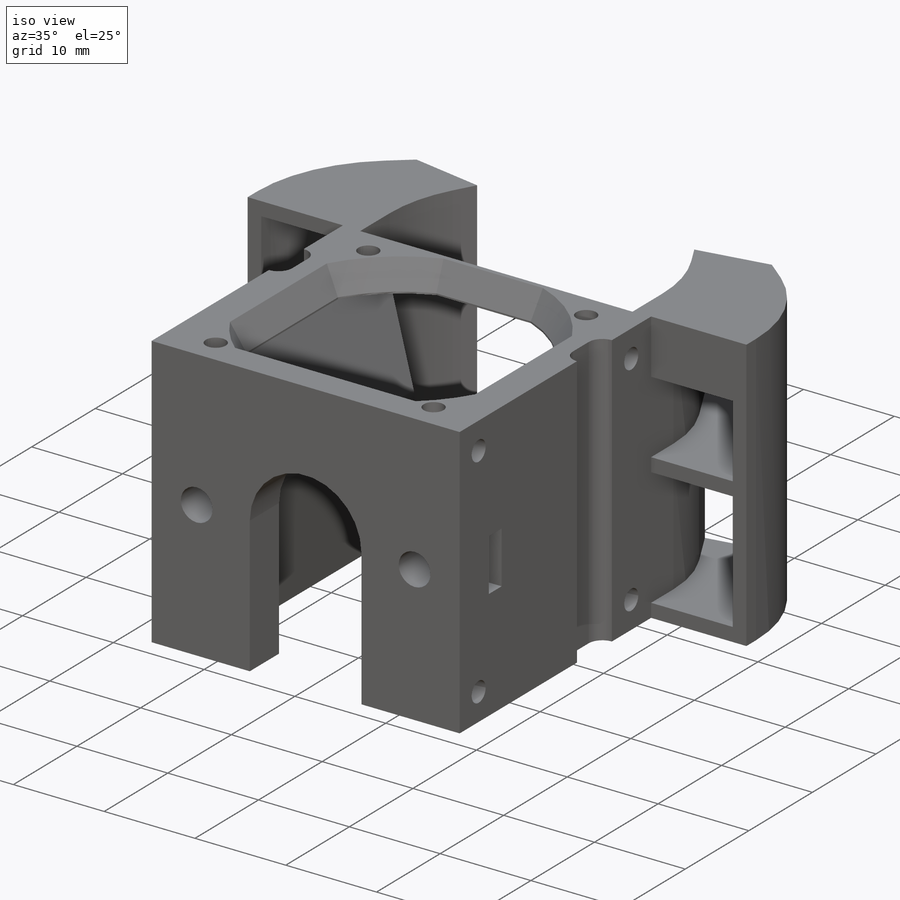
[diagram: iso view]
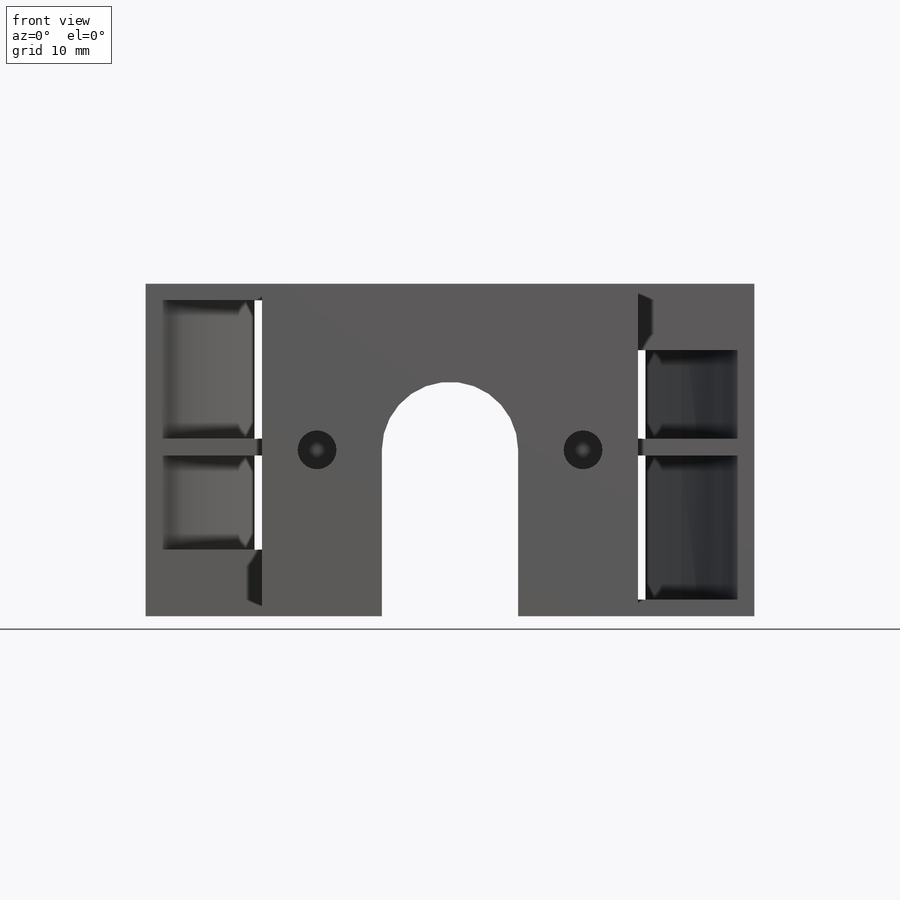
[diagram: front view]
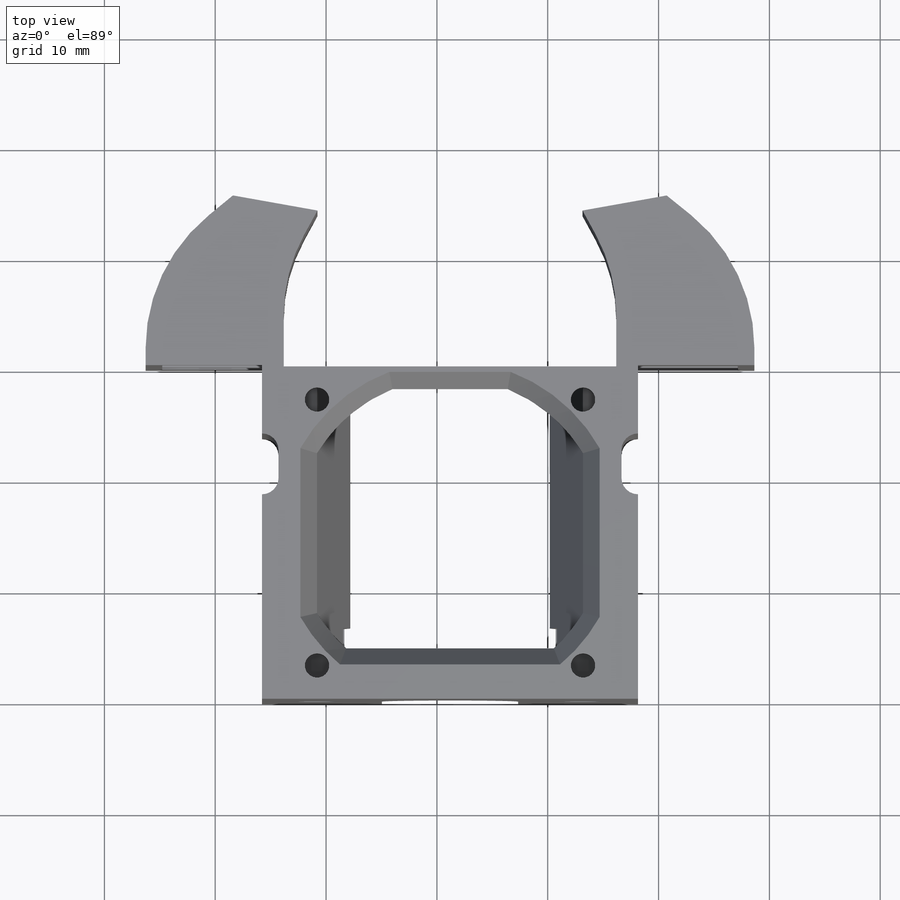
[diagram: top view]
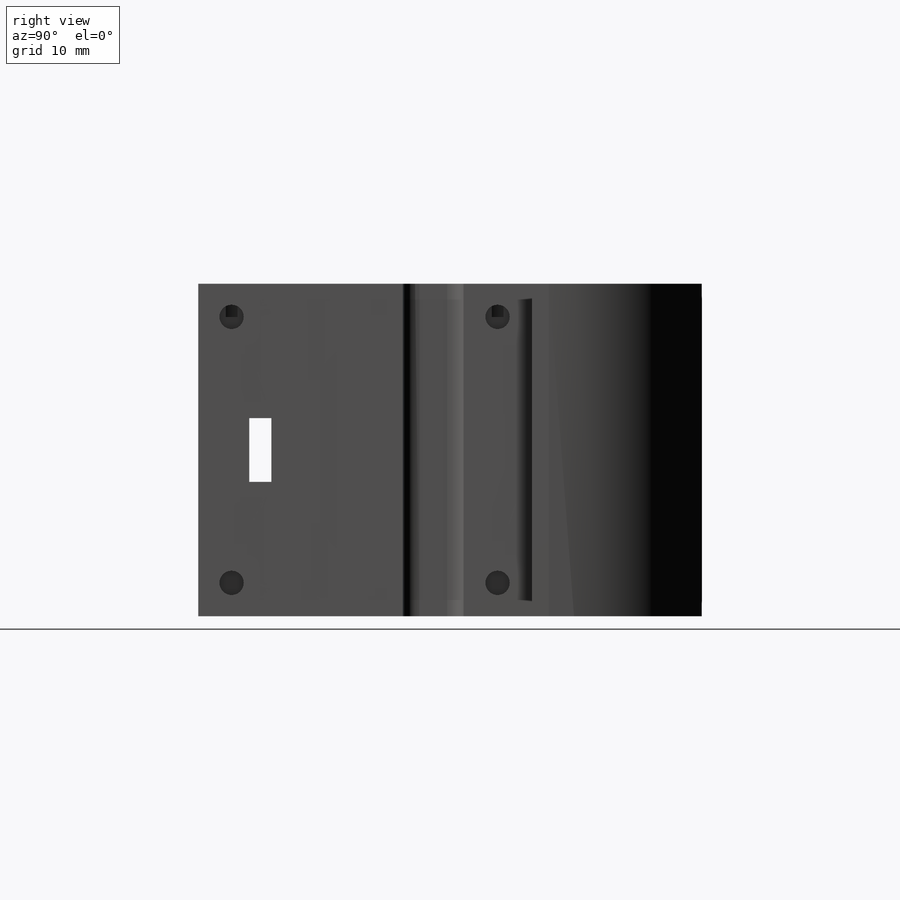
[diagram: right view]
SOLIDWORKS PART (.sldprt)
format: sldprt  version: not decoded by parser v0  size: 719,360 bytes
history: native  units: mm
features: sketch x17, extrude x9, cut_extrude x7, material x1, chamfer x1, plane x1 (+16 scaffold rows collapsed)
feature tree (52):
  scaffold x16  (default folders/planes/origin — collapsed)
  material  "Material <not specified>"
  sketch  "Sketch1"
  extrude  "Boss-Extrude1"  Depth=30mm
  sketch  "Sketch2"  dims[D1=12.3mm]
  extrude  "Boss-Extrude2"  Depth=4.6mm
  sketch  "Sketch3"  dims[c1.D1=7.7mm c1.D2=7.7mm c2.D1=3.5mm]
  sketch  "Sketch4"  dims[D1=2.2mm]
  cut_extrude  "Cut-Extrude2"  Depth=3mm
  sketch  "Sketch7"
  extrude  "Boss-Extrude4"  [1 undecoded]
  chamfer  "Chamfer2"  Distance=1.5mm Angle=62deg
  sketch  "Sketch14"  dims[D1=8.8mm D2=0.25mm D3=0.25mm]
  cut_extrude  "Cut-Extrude8"  Depth=15mm
  sketch  "Sketch15"  dims[D1=4.6mm]
  cut_extrude  "Cut-Extrude9"  [1 undecoded]
  sketch  "Sketch16"  dims[D1=15.0mm D2=1.5mm D3=1.5mm D4=1.5mm]
  sketch  "Sketch22"  dims[D1=1.5mm D2=1.5mm]
  extrude  "Boss-Extrude11"  Depth=1.5mm
  sketch  "Sketch23"  dims[c1.D1=1.5mm c1.D2=1.5mm c2.D1=1.5mm]
  extrude  "Boss-Extrude12"  Depth=1.5mm
  sketch  "Sketch24"  dims[D1=1.5mm]
  extrude  "Boss-Extrude13"  Depth=4.5mm
  sketch  "Sketch25"  dims[D1=1.5mm]
  extrude  "Boss-Extrude14"  Depth=4.5mm
  extrude  "Boss-Extrude15"  [1 undecoded]
  sketch  "Sketch29"
  cut_extrude  "Cut-Extrude13"  [1 undecoded]
  sketch  "Sketch26"
  cut_extrude  "Cut-Extrude15"  [1 undecoded]
  sketch  "Sketch30"  dims[D1=2.2mm D2=24.0mm D3=24.0mm D4=3.0mm D5=3.0mm]
  cut_extrude  "Cut-Extrude16"  Depth=4mm
  sketch  "Sketch31"
  cut_extrude  "Cut-Extrude17"  Depth=4mm
  plane  "Plane1"  Offset=14.5mm
  sketch  "Sketch33"
  extrude  "Boss-Extrude17"  Depth=1.5mm
decode coverage: 23 of 34 modeling features carry decoded parameters
note: 5 parameter values undecoded
summary: no parameter record found for 5 features
note: suppression state not decoded; provenance and decode notes live in map.json
